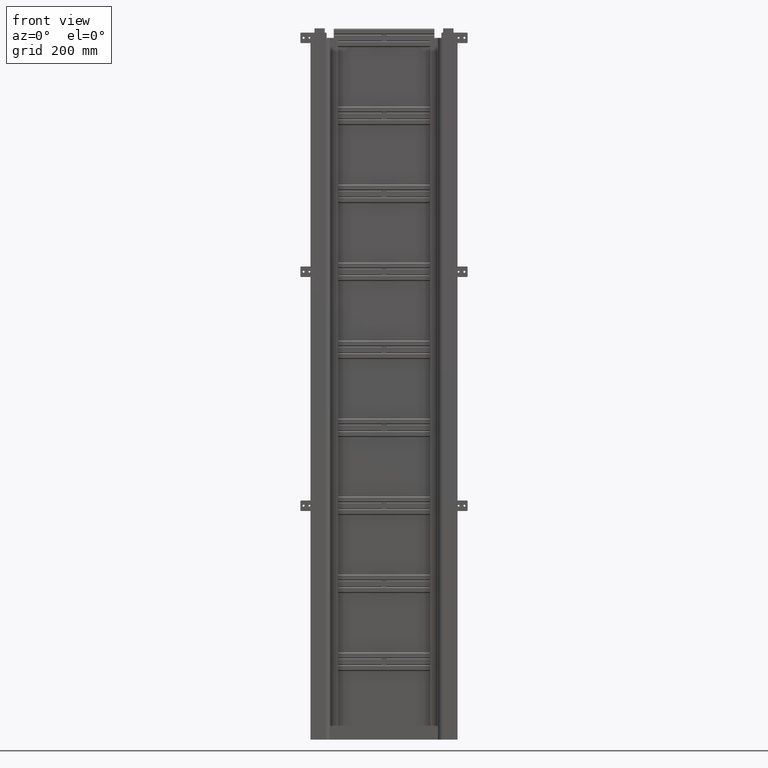
[diagram: clean part render]
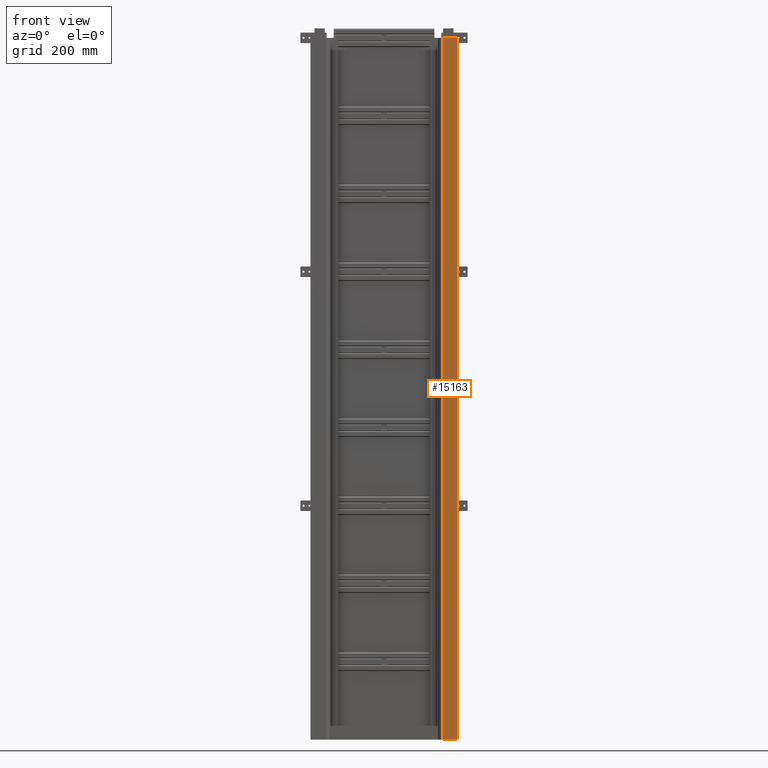
[diagram: same view with one face highlighted and labeled with its STEP entity id]
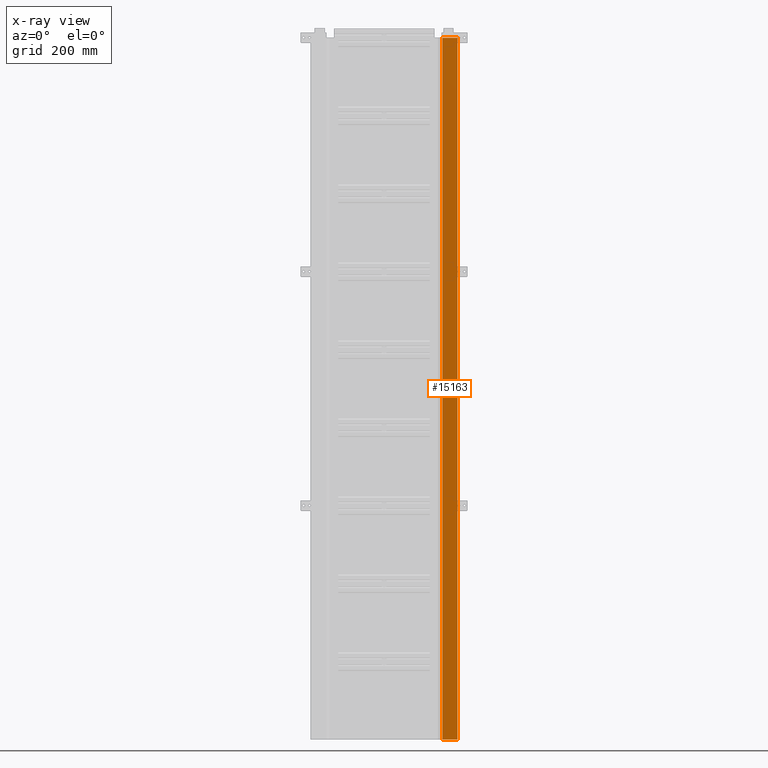
[diagram: x-ray of the same camera — body ghosted, the highlighted face saturated]
A machine part, front view. The second image highlights one B-rep face of the part: STEP entity #15163.
The next image is the same camera in x-ray: the body ghosted, the highlighted face saturated — about 0% of this face is hidden behind the body in this view.
In plain terms, the highlighted planar face has unit normal (0, -1, 0).
Its self-contained STEP definition (entity closure, byte-faithful):
#14921=DIRECTION('',(1.E0,0.E0,0.E0));
#14922=VECTOR('',#14921,5.175E1);
#14923=CARTESIAN_POINT('',(1.5E1,-4.52E1,1.2E3));
#14924=LINE('',#14923,#14922);
#14937=DIRECTION('',(1.E0,0.E0,0.E0));
#14938=VECTOR('',#14937,5.175E1);
#14939=CARTESIAN_POINT('',(1.5E1,-4.52E1,-1.2E3));
#14940=LINE('',#14939,#14938);
#14941=DIRECTION('',(0.E0,0.E0,1.E0));
#14942=VECTOR('',#14941,2.4E3);
#14943=CARTESIAN_POINT('',(1.5E1,-4.52E1,-1.2E3));
#14944=LINE('',#14943,#14942);
#14969=DIRECTION('',(0.E0,0.E0,1.E0));
#14970=VECTOR('',#14969,2.4E3);
#14971=CARTESIAN_POINT('',(6.675E1,-4.52E1,-1.2E3));
#14972=LINE('',#14971,#14970);
#14997=CARTESIAN_POINT('',(1.5E1,-4.52E1,-1.2E3));
#14998=VERTEX_POINT('',#14997);
#14999=CARTESIAN_POINT('',(6.675E1,-4.52E1,-1.2E3));
#15000=VERTEX_POINT('',#14999);
#15001=CARTESIAN_POINT('',(1.5E1,-4.52E1,1.2E3));
#15002=VERTEX_POINT('',#15001);
#15003=CARTESIAN_POINT('',(6.675E1,-4.52E1,1.2E3));
#15004=VERTEX_POINT('',#15003);
#15150=CARTESIAN_POINT('',(1.5E1,-4.52E1,-1.2E3));
#15151=DIRECTION('',(0.E0,-1.E0,0.E0));
#15152=DIRECTION('',(1.E0,0.E0,0.E0));
#15153=AXIS2_PLACEMENT_3D('',#15150,#15151,#15152);
#15154=PLANE('',#15153);
#15155=ORIENTED_EDGE('',*,*,#15143,.F.);
#15157=ORIENTED_EDGE('',*,*,#15156,.T.);
#15158=ORIENTED_EDGE('',*,*,#15116,.T.);
#15160=ORIENTED_EDGE('',*,*,#15159,.F.);
#15161=EDGE_LOOP('',(#15155,#15157,#15158,#15160));
#15162=FACE_OUTER_BOUND('',#15161,.F.);
#15116=EDGE_CURVE('',#15002,#15004,#14924,.T.);
#15143=EDGE_CURVE('',#14998,#15000,#14940,.T.);
#15156=EDGE_CURVE('',#14998,#15002,#14944,.T.);
#15159=EDGE_CURVE('',#15000,#15004,#14972,.T.);
#15163=ADVANCED_FACE('',(#15162),#15154,.T.);